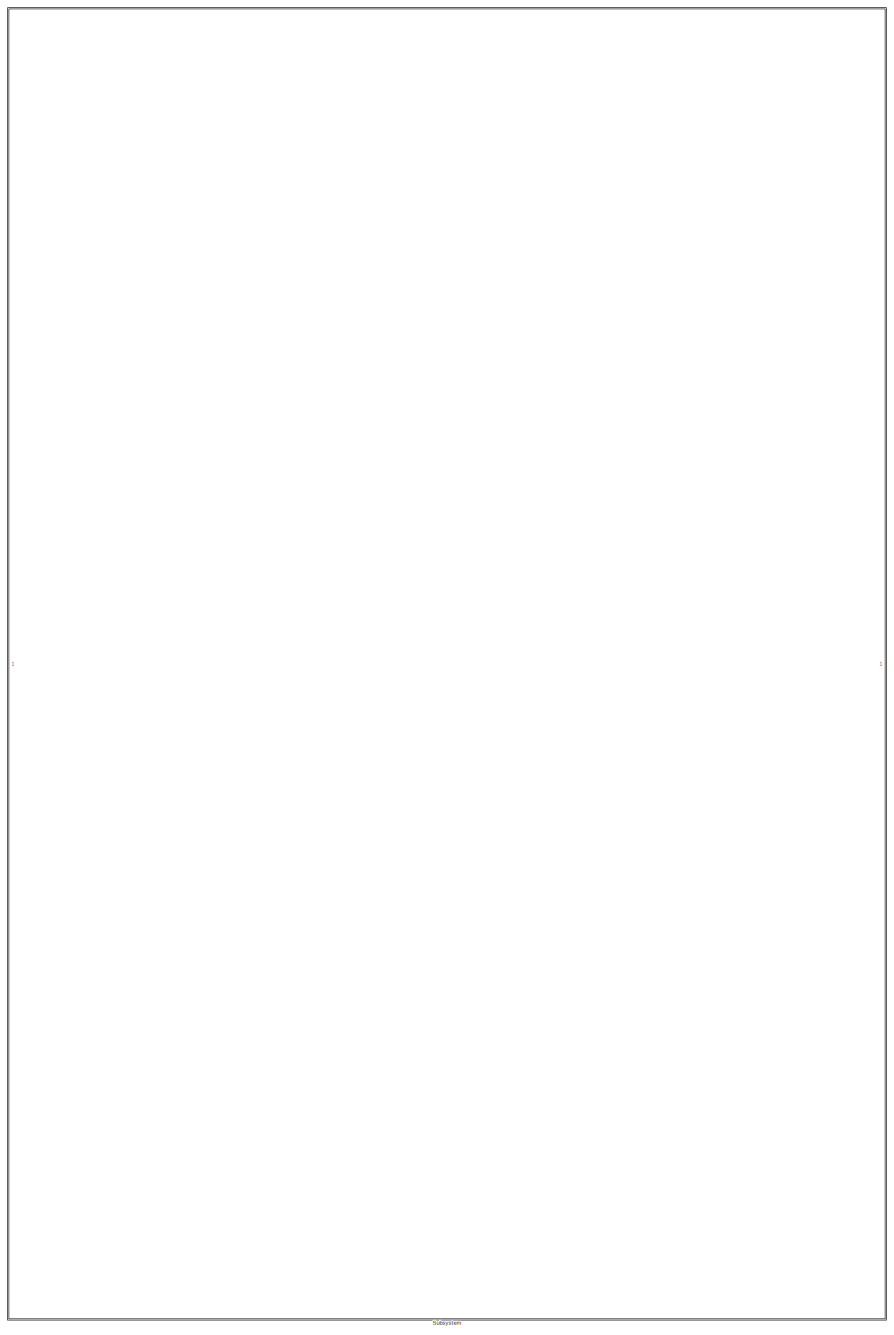
[diagram: root canvas - part 1/2, left side, full height]
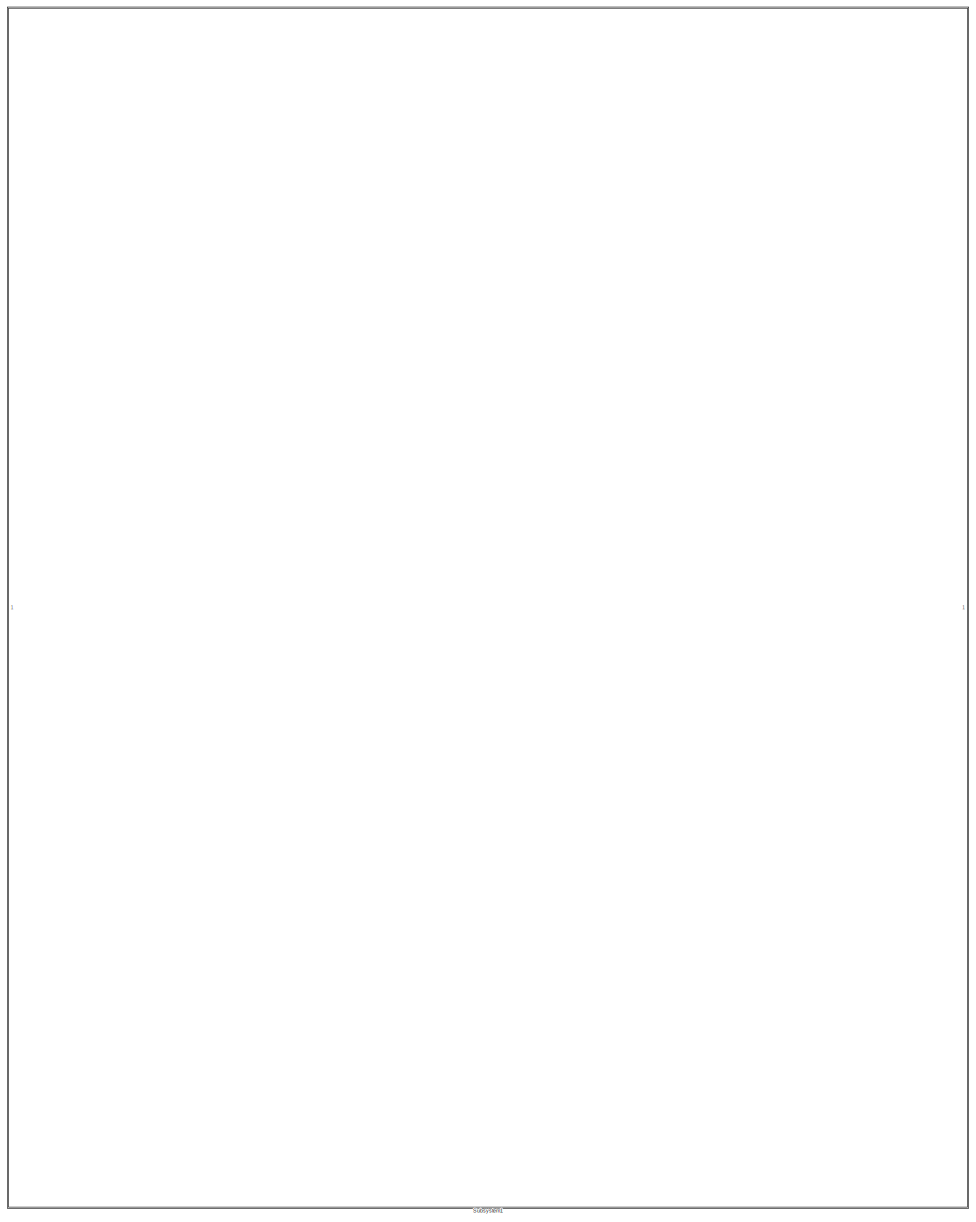
[diagram: root canvas - part 2/2, right side, full height]
MODEL slx_83ef64714634
KIND model
CONFIG AbsTol = auto
CONFIG EnableMultiTasking = off
CONFIG FixedStep = auto
CONFIG MaxStep = auto
CONFIG MinStep = auto
CONFIG RelTol = 1e-3
CONFIG SampleTimeConstraint = Unconstrained
CONFIG SolverName = VariableStepAuto
CONFIG StartTime = 0.0
CONFIG StopTime = 50
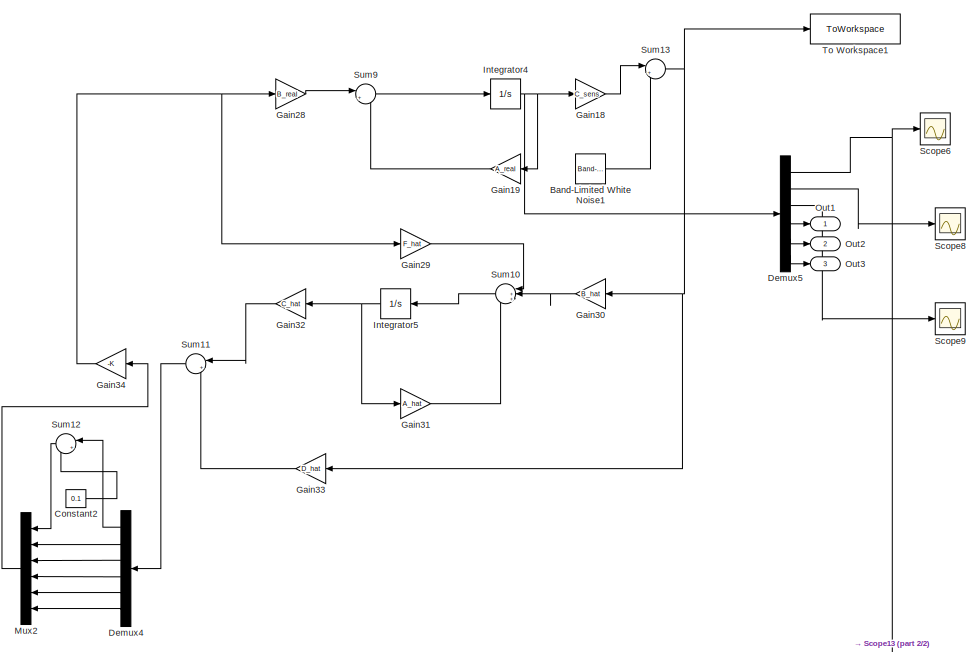
[diagram: Subsystem - part 1/2, full width, top band]
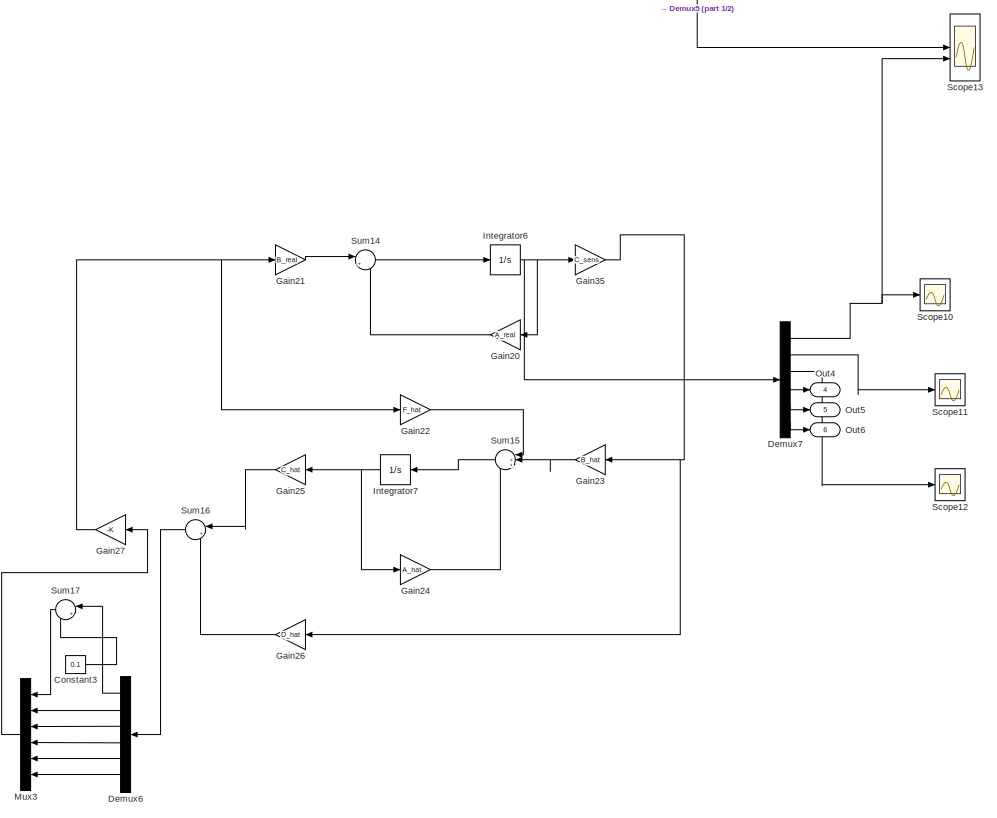
[diagram: Subsystem - part 2/2, full width, bottom band]
BLOCK [SubSystem] Subsystem
  Commented = on
BLOCK [Reference] Subsystem/Band-Limited White Noise1  REF=simulink/Sources/Band-Limited
White Noise
  SourceBlock = simulink/Sources/Band-Limited\nWhite Noise
  SourceType = Band-Limited White Noise.
BLOCK [Constant] Subsystem/Constant2
  Value = 0.1
BLOCK [Constant] Subsystem/Constant3
  Value = 0.1
BLOCK [Demux] Subsystem/Demux4
  NameLocation = top
  Outputs = 6
BLOCK [Demux] Subsystem/Demux5
  Outputs = 6
BLOCK [Demux] Subsystem/Demux6
  NameLocation = top
  Outputs = 6
BLOCK [Demux] Subsystem/Demux7
  Outputs = 6
BLOCK [Gain] Subsystem/Gain18
  Gain = C_sens
  Multiplication = Matrix(K*u)
BLOCK [Gain] Subsystem/Gain19
  Gain = A_real
  Multiplication = Matrix(K*u)
  NameLocation = top
BLOCK [Gain] Subsystem/Gain20
  Gain = A_real
  Multiplication = Matrix(K*u)
  NameLocation = top
BLOCK [Gain] Subsystem/Gain21
  Gain = B_real
  Multiplication = Matrix(K*u)
BLOCK [Gain] Subsystem/Gain22
  Gain = F_hat
  Multiplication = Matrix(K*u)
BLOCK [Gain] Subsystem/Gain23
  Gain = B_hat
  Multiplication = Matrix(K*u)
  NameLocation = top
BLOCK [Gain] Subsystem/Gain24
  Gain = A_hat
  Multiplication = Matrix(K*u)
BLOCK [Gain] Subsystem/Gain25
  Gain = C_hat
  Multiplication = Matrix(K*u)
  NameLocation = top
BLOCK [Gain] Subsystem/Gain26
  Gain = D_hat
  Multiplication = Matrix(K*u)
  NameLocation = top
BLOCK [Gain] Subsystem/Gain27
  Gain = -K
  Multiplication = Matrix(K*u)
  NameLocation = top
BLOCK [Gain] Subsystem/Gain28
  Gain = B_real
  Multiplication = Matrix(K*u)
BLOCK [Gain] Subsystem/Gain29
  Gain = F_hat
  Multiplication = Matrix(K*u)
BLOCK [Gain] Subsystem/Gain30
  Gain = B_hat
  Multiplication = Matrix(K*u)
  NameLocation = top
BLOCK [Gain] Subsystem/Gain31
  Gain = A_hat
  Multiplication = Matrix(K*u)
BLOCK [Gain] Subsystem/Gain32
  Gain = C_hat
  Multiplication = Matrix(K*u)
  NameLocation = top
BLOCK [Gain] Subsystem/Gain33
  Gain = D_hat
  Multiplication = Matrix(K*u)
  NameLocation = top
BLOCK [Gain] Subsystem/Gain34
  Gain = -K
  Multiplication = Matrix(K*u)
  NameLocation = top
BLOCK [Gain] Subsystem/Gain35
  Gain = C_sens
  Multiplication = Matrix(K*u)
BLOCK [Integrator] Subsystem/Integrator4
  InitialCondition = [0;0;1*pi/180;0;0;0]
BLOCK [Integrator] Subsystem/Integrator5
  InitialCondition = [0;0;0;0]
  NameLocation = top
BLOCK [Integrator] Subsystem/Integrator6
  InitialCondition = [0;0;1*pi/180;0;0;0]
BLOCK [Integrator] Subsystem/Integrator7
  InitialCondition = [0;0;0;0]
  NameLocation = top
BLOCK [Mux] Subsystem/Mux2
  DisplayOption = bar
  Inputs = 6
  NameLocation = top
BLOCK [Mux] Subsystem/Mux3
  DisplayOption = bar
  Inputs = 6
  NameLocation = top
BLOCK [Outport] Subsystem/Out1
BLOCK [Outport] Subsystem/Out2
  Port = 2
BLOCK [Outport] Subsystem/Out3
  Port = 3
BLOCK [Outport] Subsystem/Out4
  Port = 4
BLOCK [Outport] Subsystem/Out5
  Port = 5
BLOCK [Outport] Subsystem/Out6
  Port = 6
BLOCK [Scope] Subsystem/Scope10
  ActiveDisplayYMaximum = 2.3047007119149248
  ActiveDisplayYMinimum = -1.4571930900555263
  DataLoggingVariableName = ScopeData6
  Floating = off
  GraphicalSettings = {"Style":{"BackgroundColor":[0.12941176470588237,0.12941176470588237,0.12941176470588237],"AxesColor":[0.07058823529411765,0.07058823529411765,0.07058823529411765],"LabelsColor":[0.8509803921568627,0.8509803921568627,0.8509803921568627],"PreserveColors":false,"Visible":[true],"LineStyle":["-"],"LineWidth":[1.5],"BarWidth":[0.9],"LineColor":["auto"],"LineFaceAlpha":[1],"LineEdgeAlpha":[1],"Marker":...<+2001ch>
  MultipleDisplayCache = [{"MaxYLimMag":2.4257265013469604,"MaxYLimReal":2.3047007119149248,"MinYLimMag":0,"MinYLimReal":-1.4571930900555263,"PlotAsMagnitudePhase":false,"ShowGrid":true,"ShowLegend":false,"Title":"%<SignalLabel>","YLabel":""}]
  NumInputPorts = 1
  ScopeFrameLocation = window
  WasSavedAsWebScope = on
  WindowPosition = [267.000000,201.000000,1387.000000,752.000000,]
BLOCK [Scope] Subsystem/Scope11
  ActiveDisplayYMaximum = 75.841971632871335
  ActiveDisplayYMinimum = -38.619010005293767
  DataLoggingVariableName = ScopeData8
  Floating = off
  GraphicalSettings = {"Style":{"BackgroundColor":[0.12941176470588237,0.12941176470588237,0.12941176470588237],"AxesColor":[0.07058823529411765,0.07058823529411765,0.07058823529411765],"LabelsColor":[0.8509803921568627,0.8509803921568627,0.8509803921568627],"PreserveColors":false,"Visible":[true,true,true,true,true,true],"LineStyle":["-","-","-","-","-","-"],"LineWidth":[1.5,1.5,1.5,1.5,1.5,1.5],"BarWidth":[0.9,0.9,0....<+2610ch>
  MultipleDisplayCache = [{"MaxYLimMag":2.4257265013469604,"MaxYLimReal":75.841971632871335,"MinYLimMag":0,"MinYLimReal":-38.619010005293767,"PlotAsMagnitudePhase":false,"ShowGrid":true,"ShowLegend":false,"Title":"%<SignalLabel>","YLabel":""}]
  NumInputPorts = 1
  ScopeFrameLocation = window
  WasSavedAsWebScope = on
  WindowPosition = [302.000000,302.000000,1387.000000,752.000000,]
BLOCK [Scope] Subsystem/Scope12
  ActiveDisplayYMaximum = 0.25055600855879168
  ActiveDisplayYMinimum = 0.076583474303589763
  DataLoggingVariableName = ScopeData9
  Floating = off
  GraphicalSettings = {"AxesScalingProperties":{"AlignXAxis":"Center","AlignYAxis":"Center","AutoScaleXAxisLimits":false,"AxesScaling":"Manual","AxesScalingNumUpdates":10,"ExpandOnly":true,"ScaleAxesLimitsAtStop":false,"XAxisDataRange":100,"YAxisDataRange":80},"DisplayProperties":{"ColorOrder":["auto","auto","auto","auto","auto","auto","auto","auto","auto","auto","auto","auto","auto","auto","auto","auto","auto","auto",...<+2010ch>  <repeated x3 — deduplicated; at blocks: Scope12, Scope6, Scope9>
  MultipleDisplayCache = [{"MaxYLimMag":2.4257265013469604,"MaxYLimReal":0.25055600855879168,"MinYLimMag":0,"MinYLimReal":0.076583474303589763,"PlotAsMagnitudePhase":false,"ShowGrid":true,"ShowLegend":false,"Title":"%<SignalLabel>","YLabel":""}]
  NumInputPorts = 1
  ScopeFrameLocation = window
  WasSavedAsWebScope = on
  WindowPosition = [267.000000,302.000000,1387.000000,752.000000,]
BLOCK [Scope] Subsystem/Scope13
  ActiveDisplayYMaximum = 43.530378748753677
  ActiveDisplayYMinimum = -66.910633005790316
  DataLoggingVariableName = ScopeData10
  Floating = off
  GraphicalSettings = {"Style":{"BackgroundColor":[0.12941176470588237,0.12941176470588237,0.12941176470588237],"AxesColor":[0.07058823529411765,0.07058823529411765,0.07058823529411765],"LabelsColor":[0.8509803921568627,0.8509803921568627,0.8509803921568627],"PreserveColors":false,"Visible":[true,true],"LineStyle":["-","-"],"LineWidth":[1.5,1.5],"BarWidth":[0.9,0.9],"LineColor":["auto","auto"],"LineFaceAlpha":[1,1],"Li...<+2114ch>
  MultipleDisplayCache = [{"MaxYLimMag":2.4257265013469604,"MaxYLimReal":43.530378748753677,"MinYLimMag":0,"MinYLimReal":-66.910633005790316,"PlotAsMagnitudePhase":false,"ShowGrid":true,"ShowLegend":false,"Title":"%<SignalLabel>","YLabel":""}]
  NumInputPorts = 2
  ScopeFrameLocation = window
  WasSavedAsWebScope = on
  WindowPosition = [267.000000,275.000000,1387.000000,752.000000,]
BLOCK [Scope] Subsystem/Scope6
  ActiveDisplayYMaximum = 790.95216777342159
  ActiveDisplayYMinimum = -553.06616250271725
  DataLoggingVariableName = ScopeData11
  Floating = off
  MultipleDisplayCache = [{"MaxYLimMag":2.4257265013469604,"MaxYLimReal":790.95216777342159,"MinYLimMag":0,"MinYLimReal":-553.06616250271725,"PlotAsMagnitudePhase":false,"ShowGrid":true,"ShowLegend":false,"Title":"%<SignalLabel>","YLabel":""}]
  NumInputPorts = 1
  ScopeFrameLocation = window
  WasSavedAsWebScope = on
  WindowPosition = [267.000000,238.000000,1387.000000,752.000000,]
BLOCK [Scope] Subsystem/Scope8
  ActiveDisplayYMaximum = 75.841971632871335
  ActiveDisplayYMinimum = -38.619010005293767
  DataLoggingVariableName = ScopeData12
  Floating = off
  GraphicalSettings = {"Style":{"BackgroundColor":[0.12941176470588237,0.12941176470588237,0.12941176470588237],"AxesColor":[0.07058823529411765,0.07058823529411765,0.07058823529411765],"LabelsColor":[0.8509803921568627,0.8509803921568627,0.8509803921568627],"PreserveColors":false,"Visible":[true,true,true,true,true,true],"LineStyle":["-","-","-","-","-","-"],"LineWidth":[1.5,1.5,1.5,1.5,1.5,1.5],"BarWidth":[0.9,0.9,0....<+2610ch>
  MultipleDisplayCache = [{"MaxYLimMag":2.4257265013469604,"MaxYLimReal":75.841971632871335,"MinYLimMag":0,"MinYLimReal":-38.619010005293767,"PlotAsMagnitudePhase":false,"ShowGrid":true,"ShowLegend":false,"Title":"%<SignalLabel>","YLabel":""}]
  NumInputPorts = 1
  ScopeFrameLocation = window
  WasSavedAsWebScope = on
  WindowPosition = [302.000000,302.000000,1387.000000,752.000000,]
BLOCK [Scope] Subsystem/Scope9
  ActiveDisplayYMaximum = 0.25055600855879168
  ActiveDisplayYMinimum = 0.076583474303589763
  DataLoggingVariableName = ScopeData13
  Floating = off
  MultipleDisplayCache = [{"MaxYLimMag":2.4257265013469604,"MaxYLimReal":0.25055600855879168,"MinYLimMag":0,"MinYLimReal":0.076583474303589763,"PlotAsMagnitudePhase":false,"ShowGrid":true,"ShowLegend":false,"Title":"%<SignalLabel>","YLabel":""}]
  NumInputPorts = 1
  ScopeFrameLocation = window
  WasSavedAsWebScope = on
  WindowPosition = [267.000000,302.000000,1387.000000,752.000000,]
BLOCK [Sum] Subsystem/Sum10
  Inputs = |+++
  NameLocation = top
BLOCK [Sum] Subsystem/Sum11
  Inputs = |++
  NameLocation = top
BLOCK [Sum] Subsystem/Sum12
  Inputs = |+-
  NameLocation = top
BLOCK [Sum] Subsystem/Sum13
  Inputs = |++
BLOCK [Sum] Subsystem/Sum14
  Inputs = |++
BLOCK [Sum] Subsystem/Sum15
  Inputs = |+++
  NameLocation = top
BLOCK [Sum] Subsystem/Sum16
  Inputs = |++
  NameLocation = top
BLOCK [Sum] Subsystem/Sum17
  Inputs = |+-
  NameLocation = top
BLOCK [Sum] Subsystem/Sum9
  Inputs = |++
BLOCK [ToWorkspace] Subsystem/To Workspace1
  FixptAsFi = on
  MaxDataPoints = inf
  SampleTime = -1
  VariableName = noisy_data1
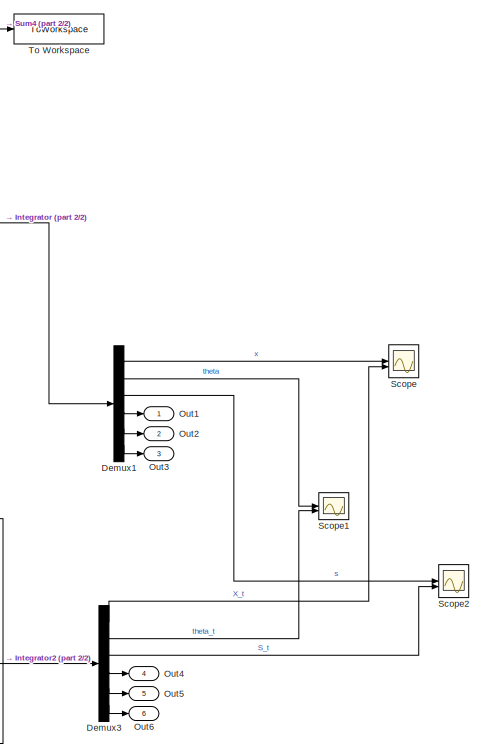
[diagram: Subsystem1 - part 1/2, middle right region]
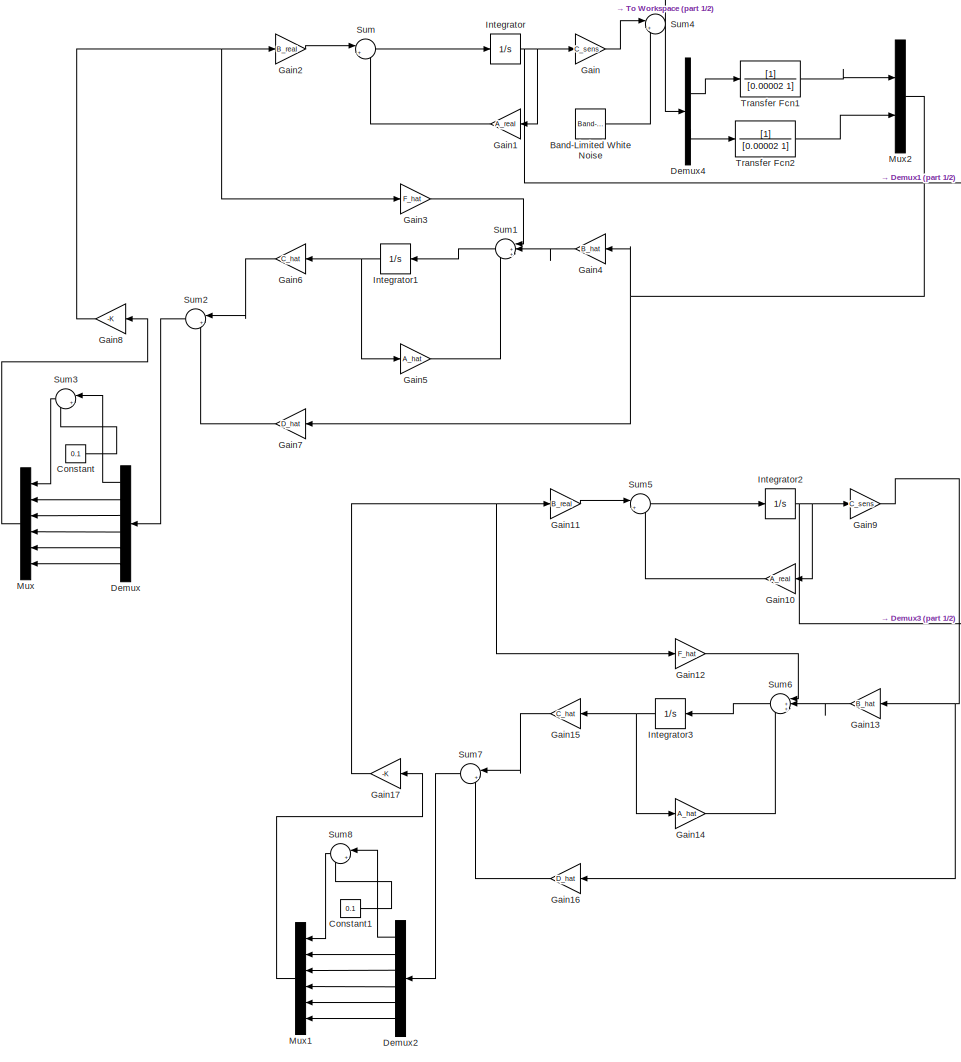
[diagram: Subsystem1 - part 2/2, center side, full height]
BLOCK [SubSystem] Subsystem1
BLOCK [Reference] Subsystem1/Band-Limited White Noise  REF=simulink/Sources/Band-Limited
White Noise
  SourceBlock = simulink/Sources/Band-Limited\nWhite Noise
  SourceType = Band-Limited White Noise.
BLOCK [Constant] Subsystem1/Constant
  Value = 0.1
BLOCK [Constant] Subsystem1/Constant1
  Value = 0.1
BLOCK [Demux] Subsystem1/Demux
  NameLocation = top
  Outputs = 6
BLOCK [Demux] Subsystem1/Demux1
  Outputs = 6
BLOCK [Demux] Subsystem1/Demux2
  NameLocation = top
  Outputs = 6
BLOCK [Demux] Subsystem1/Demux3
  Outputs = 6
BLOCK [Demux] Subsystem1/Demux4
  Outputs = 2
BLOCK [Gain] Subsystem1/Gain
  Gain = C_sens
  Multiplication = Matrix(K*u)
BLOCK [Gain] Subsystem1/Gain1
  Gain = A_real
  Multiplication = Matrix(K*u)
  NameLocation = top
BLOCK [Gain] Subsystem1/Gain10
  Gain = A_real
  Multiplication = Matrix(K*u)
  NameLocation = top
BLOCK [Gain] Subsystem1/Gain11
  Gain = B_real
  Multiplication = Matrix(K*u)
BLOCK [Gain] Subsystem1/Gain12
  Gain = F_hat
  Multiplication = Matrix(K*u)
BLOCK [Gain] Subsystem1/Gain13
  Gain = B_hat
  Multiplication = Matrix(K*u)
  NameLocation = top
BLOCK [Gain] Subsystem1/Gain14
  Gain = A_hat
  Multiplication = Matrix(K*u)
BLOCK [Gain] Subsystem1/Gain15
  Gain = C_hat
  Multiplication = Matrix(K*u)
  NameLocation = top
BLOCK [Gain] Subsystem1/Gain16
  Gain = D_hat
  Multiplication = Matrix(K*u)
  NameLocation = top
BLOCK [Gain] Subsystem1/Gain17
  Gain = -K
  Multiplication = Matrix(K*u)
  NameLocation = top
BLOCK [Gain] Subsystem1/Gain2
  Gain = B_real
  Multiplication = Matrix(K*u)
BLOCK [Gain] Subsystem1/Gain3
  Gain = F_hat
  Multiplication = Matrix(K*u)
BLOCK [Gain] Subsystem1/Gain4
  Gain = B_hat
  Multiplication = Matrix(K*u)
  NameLocation = top
BLOCK [Gain] Subsystem1/Gain5
  Gain = A_hat
  Multiplication = Matrix(K*u)
BLOCK [Gain] Subsystem1/Gain6
  Gain = C_hat
  Multiplication = Matrix(K*u)
  NameLocation = top
BLOCK [Gain] Subsystem1/Gain7
  Gain = D_hat
  Multiplication = Matrix(K*u)
  NameLocation = top
BLOCK [Gain] Subsystem1/Gain8
  Gain = -K
  Multiplication = Matrix(K*u)
  NameLocation = top
BLOCK [Gain] Subsystem1/Gain9
  Gain = C_sens
  Multiplication = Matrix(K*u)
BLOCK [Integrator] Subsystem1/Integrator
  InitialCondition = [0;0;4*pi/180;0;0;0]
BLOCK [Integrator] Subsystem1/Integrator1
  InitialCondition = [0;0;0;0]
  NameLocation = top
BLOCK [Integrator] Subsystem1/Integrator2
  InitialCondition = [0;0;4*pi/180;0;0;0]
BLOCK [Integrator] Subsystem1/Integrator3
  InitialCondition = [0;0;0;0]
  NameLocation = top
BLOCK [Mux] Subsystem1/Mux
  DisplayOption = bar
  Inputs = 6
  NameLocation = top
BLOCK [Mux] Subsystem1/Mux1
  DisplayOption = bar
  Inputs = 6
  NameLocation = top
BLOCK [Mux] Subsystem1/Mux2
  DisplayOption = bar
  Inputs = 2
BLOCK [Outport] Subsystem1/Out1
BLOCK [Outport] Subsystem1/Out2
  Port = 2
BLOCK [Outport] Subsystem1/Out3
  Port = 3
BLOCK [Outport] Subsystem1/Out4
  Port = 4
BLOCK [Outport] Subsystem1/Out5
  Port = 5
BLOCK [Outport] Subsystem1/Out6
  Port = 6
BLOCK [Scope] Subsystem1/Scope
  Floating = off
  GraphicalSettings = {"GraphicalSettings":{"LegacySettings":true,"Style":{"Style":{"PlotType":"Auto"}}}}
  NumInputPorts = 2
  WasSavedAsWebScope = on
BLOCK [Scope] Subsystem1/Scope1
  DataLoggingVariableName = ScopeData1
  Floating = off
  GraphicalSettings = {"GraphicalSettings":{"LegacySettings":true,"Style":{"Style":{"PlotType":"Auto"}}}}
  NumInputPorts = 2
  WasSavedAsWebScope = on
BLOCK [Scope] Subsystem1/Scope2
  ActiveDisplayYMaximum = 1.9646271868821386
  ActiveDisplayYMinimum = -2.5105740742429736
  DataLoggingVariableName = ScopeData2
  Floating = off
  GraphicalSettings = {"Style":{"BackgroundColor":[0.12941176470588237,0.12941176470588237,0.12941176470588237],"AxesColor":[0.07058823529411765,0.07058823529411765,0.07058823529411765],"LabelsColor":[0.8509803921568627,0.8509803921568627,0.8509803921568627],"PreserveColors":false,"Visible":[true,true],"LineStyle":["-","-"],"LineWidth":[1.5,1.5],"BarWidth":[0.9,0.9],"LineColor":["auto","auto"],"LineFaceAlpha":[1,1],"Li...<+2094ch>
  MultipleDisplayCache = [{"MaxYLimMag":0.51399971131980771,"MaxYLimReal":1.9646271868821386,"MinYLimMag":0,"MinYLimReal":-2.5105740742429736,"PlotAsMagnitudePhase":false,"ShowGrid":true,"ShowLegend":true,"Title":"%<SignalLabel>","YLabel":""}]
  NumInputPorts = 2
  ScopeFrameLocation = window
  ShowLegend = on
  WasSavedAsWebScope = on
  WindowPosition = [81.000000,30.000000,1850.000000,1016.000000,]
BLOCK [Sum] Subsystem1/Sum
  Inputs = |++
BLOCK [Sum] Subsystem1/Sum1
  Inputs = |+++
  NameLocation = top
BLOCK [Sum] Subsystem1/Sum2
  Inputs = |++
  NameLocation = top
BLOCK [Sum] Subsystem1/Sum3
  Inputs = |+-
  NameLocation = top
BLOCK [Sum] Subsystem1/Sum4
  Inputs = |++
BLOCK [Sum] Subsystem1/Sum5
  Inputs = |++
BLOCK [Sum] Subsystem1/Sum6
  Inputs = |+++
  NameLocation = top
BLOCK [Sum] Subsystem1/Sum7
  Inputs = |++
  NameLocation = top
BLOCK [Sum] Subsystem1/Sum8
  Inputs = |+-
  NameLocation = top
BLOCK [ToWorkspace] Subsystem1/To Workspace
  FixptAsFi = on
  MaxDataPoints = inf
  SampleTime = -1
  VariableName = noisy_data
BLOCK [TransferFcn] Subsystem1/Transfer Fcn1
  Denominator = [0.00002 1]
BLOCK [TransferFcn] Subsystem1/Transfer Fcn2
  Denominator = [0.00002 1]
LINE Subsystem/Band-Limited White Noise1:1 -> Subsystem/Sum13:2
LINE Subsystem/Constant2:1 -> Subsystem/Sum12:2
LINE Subsystem/Constant3:1 -> Subsystem/Sum17:2
LINE Subsystem/Demux4:1 -> Subsystem/Sum12:1
LINE Subsystem/Demux4:2 -> Subsystem/Mux2:2
LINE Subsystem/Demux4:3 -> Subsystem/Mux2:3
LINE Subsystem/Demux4:4 -> Subsystem/Mux2:4
LINE Subsystem/Demux4:5 -> Subsystem/Mux2:5
LINE Subsystem/Demux4:6 -> Subsystem/Mux2:6
NET Subsystem/Demux5:1 -> Subsystem/Scope13:1, Subsystem/Scope6:1
LINE Subsystem/Demux5:2 -> Subsystem/Scope8:1
LINE Subsystem/Demux5:3 -> Subsystem/Scope9:1
LINE Subsystem/Demux5:4 -> Subsystem/Out1:1
LINE Subsystem/Demux5:5 -> Subsystem/Out2:1
LINE Subsystem/Demux5:6 -> Subsystem/Out3:1
LINE Subsystem/Demux6:1 -> Subsystem/Sum17:1
LINE Subsystem/Demux6:2 -> Subsystem/Mux3:2
LINE Subsystem/Demux6:3 -> Subsystem/Mux3:3
LINE Subsystem/Demux6:4 -> Subsystem/Mux3:4
LINE Subsystem/Demux6:5 -> Subsystem/Mux3:5
LINE Subsystem/Demux6:6 -> Subsystem/Mux3:6
NET Subsystem/Demux7:1 -> Subsystem/Scope10:1, Subsystem/Scope13:2
LINE Subsystem/Demux7:2 -> Subsystem/Scope11:1
LINE Subsystem/Demux7:3 -> Subsystem/Scope12:1
LINE Subsystem/Demux7:4 -> Subsystem/Out4:1
LINE Subsystem/Demux7:5 -> Subsystem/Out5:1
LINE Subsystem/Demux7:6 -> Subsystem/Out6:1
LINE Subsystem/Gain18:1 -> Subsystem/Sum13:1
LINE Subsystem/Gain19:1 -> Subsystem/Sum9:2
LINE Subsystem/Gain20:1 -> Subsystem/Sum14:2
LINE Subsystem/Gain21:1 -> Subsystem/Sum14:1
LINE Subsystem/Gain22:1 -> Subsystem/Sum15:1
LINE Subsystem/Gain23:1 -> Subsystem/Sum15:2
LINE Subsystem/Gain24:1 -> Subsystem/Sum15:3
LINE Subsystem/Gain25:1 -> Subsystem/Sum16:1
LINE Subsystem/Gain26:1 -> Subsystem/Sum16:2
NET Subsystem/Gain27:1 -> Subsystem/Gain21:1, Subsystem/Gain22:1
LINE Subsystem/Gain28:1 -> Subsystem/Sum9:1
LINE Subsystem/Gain29:1 -> Subsystem/Sum10:1
LINE Subsystem/Gain30:1 -> Subsystem/Sum10:2
LINE Subsystem/Gain31:1 -> Subsystem/Sum10:3
LINE Subsystem/Gain32:1 -> Subsystem/Sum11:1
LINE Subsystem/Gain33:1 -> Subsystem/Sum11:2
NET Subsystem/Gain34:1 -> Subsystem/Gain28:1, Subsystem/Gain29:1
NET Subsystem/Gain35:1 -> Subsystem/Gain23:1, Subsystem/Gain26:1
NET Subsystem/Integrator4:1 -> Subsystem/Demux5:1, Subsystem/Gain18:1, Subsystem/Gain19:1
NET Subsystem/Integrator5:1 -> Subsystem/Gain31:1, Subsystem/Gain32:1
NET Subsystem/Integrator6:1 -> Subsystem/Demux7:1, Subsystem/Gain20:1, Subsystem/Gain35:1
NET Subsystem/Integrator7:1 -> Subsystem/Gain24:1, Subsystem/Gain25:1
LINE Subsystem/Mux2:1 -> Subsystem/Gain34:1
LINE Subsystem/Mux3:1 -> Subsystem/Gain27:1
LINE Subsystem/Sum10:1 -> Subsystem/Integrator5:1
LINE Subsystem/Sum11:1 -> Subsystem/Demux4:1
LINE Subsystem/Sum12:1 -> Subsystem/Mux2:1
NET Subsystem/Sum13:1 -> Subsystem/Gain30:1, Subsystem/Gain33:1, Subsystem/To Workspace1:1
LINE Subsystem/Sum14:1 -> Subsystem/Integrator6:1
LINE Subsystem/Sum15:1 -> Subsystem/Integrator7:1
LINE Subsystem/Sum16:1 -> Subsystem/Demux6:1
LINE Subsystem/Sum17:1 -> Subsystem/Mux3:1
LINE Subsystem/Sum9:1 -> Subsystem/Integrator4:1
LINE Subsystem1/Band-Limited White Noise:1 -> Subsystem1/Sum4:2
LINE Subsystem1/Constant1:1 -> Subsystem1/Sum8:2
LINE Subsystem1/Constant:1 -> Subsystem1/Sum3:2
LINE Subsystem1/Demux1:1 -> Subsystem1/Scope:1
LINE Subsystem1/Demux1:2 -> Subsystem1/Scope1:1
LINE Subsystem1/Demux1:3 -> Subsystem1/Scope2:1
LINE Subsystem1/Demux1:4 -> Subsystem1/Out1:1
LINE Subsystem1/Demux1:5 -> Subsystem1/Out2:1
LINE Subsystem1/Demux1:6 -> Subsystem1/Out3:1
LINE Subsystem1/Demux2:1 -> Subsystem1/Sum8:1
LINE Subsystem1/Demux2:2 -> Subsystem1/Mux1:2
LINE Subsystem1/Demux2:3 -> Subsystem1/Mux1:3
LINE Subsystem1/Demux2:4 -> Subsystem1/Mux1:4
LINE Subsystem1/Demux2:5 -> Subsystem1/Mux1:5
LINE Subsystem1/Demux2:6 -> Subsystem1/Mux1:6
LINE Subsystem1/Demux3:1 -> Subsystem1/Scope:2
LINE Subsystem1/Demux3:2 -> Subsystem1/Scope1:2
LINE Subsystem1/Demux3:3 -> Subsystem1/Scope2:2
LINE Subsystem1/Demux3:4 -> Subsystem1/Out4:1
LINE Subsystem1/Demux3:5 -> Subsystem1/Out5:1
LINE Subsystem1/Demux3:6 -> Subsystem1/Out6:1
LINE Subsystem1/Demux4:1 -> Subsystem1/Transfer Fcn1:1
LINE Subsystem1/Demux4:2 -> Subsystem1/Transfer Fcn2:1
LINE Subsystem1/Demux:1 -> Subsystem1/Sum3:1
LINE Subsystem1/Demux:2 -> Subsystem1/Mux:2
LINE Subsystem1/Demux:3 -> Subsystem1/Mux:3
LINE Subsystem1/Demux:4 -> Subsystem1/Mux:4
LINE Subsystem1/Demux:5 -> Subsystem1/Mux:5
LINE Subsystem1/Demux:6 -> Subsystem1/Mux:6
LINE Subsystem1/Gain10:1 -> Subsystem1/Sum5:2
LINE Subsystem1/Gain11:1 -> Subsystem1/Sum5:1
LINE Subsystem1/Gain12:1 -> Subsystem1/Sum6:1
LINE Subsystem1/Gain13:1 -> Subsystem1/Sum6:2
LINE Subsystem1/Gain14:1 -> Subsystem1/Sum6:3
LINE Subsystem1/Gain15:1 -> Subsystem1/Sum7:1
LINE Subsystem1/Gain16:1 -> Subsystem1/Sum7:2
NET Subsystem1/Gain17:1 -> Subsystem1/Gain11:1, Subsystem1/Gain12:1
LINE Subsystem1/Gain1:1 -> Subsystem1/Sum:2
LINE Subsystem1/Gain2:1 -> Subsystem1/Sum:1
LINE Subsystem1/Gain3:1 -> Subsystem1/Sum1:1
LINE Subsystem1/Gain4:1 -> Subsystem1/Sum1:2
LINE Subsystem1/Gain5:1 -> Subsystem1/Sum1:3
LINE Subsystem1/Gain6:1 -> Subsystem1/Sum2:1
LINE Subsystem1/Gain7:1 -> Subsystem1/Sum2:2
NET Subsystem1/Gain8:1 -> Subsystem1/Gain2:1, Subsystem1/Gain3:1
NET Subsystem1/Gain9:1 -> Subsystem1/Gain13:1, Subsystem1/Gain16:1
LINE Subsystem1/Gain:1 -> Subsystem1/Sum4:1
NET Subsystem1/Integrator1:1 -> Subsystem1/Gain5:1, Subsystem1/Gain6:1
NET Subsystem1/Integrator2:1 -> Subsystem1/Demux3:1, Subsystem1/Gain10:1, Subsystem1/Gain9:1
NET Subsystem1/Integrator3:1 -> Subsystem1/Gain14:1, Subsystem1/Gain15:1
NET Subsystem1/Integrator:1 -> Subsystem1/Demux1:1, Subsystem1/Gain1:1, Subsystem1/Gain:1
LINE Subsystem1/Mux1:1 -> Subsystem1/Gain17:1
NET Subsystem1/Mux2:1 -> Subsystem1/Gain4:1, Subsystem1/Gain7:1
LINE Subsystem1/Mux:1 -> Subsystem1/Gain8:1
LINE Subsystem1/Sum1:1 -> Subsystem1/Integrator1:1
LINE Subsystem1/Sum2:1 -> Subsystem1/Demux:1
LINE Subsystem1/Sum3:1 -> Subsystem1/Mux:1
NET Subsystem1/Sum4:1 -> Subsystem1/Demux4:1, Subsystem1/To Workspace:1
LINE Subsystem1/Sum5:1 -> Subsystem1/Integrator2:1
LINE Subsystem1/Sum6:1 -> Subsystem1/Integrator3:1
LINE Subsystem1/Sum7:1 -> Subsystem1/Demux2:1
LINE Subsystem1/Sum8:1 -> Subsystem1/Mux1:1
LINE Subsystem1/Sum:1 -> Subsystem1/Integrator:1
LINE Subsystem1/Transfer Fcn1:1 -> Subsystem1/Mux2:1
LINE Subsystem1/Transfer Fcn2:1 -> Subsystem1/Mux2:2
note: NET lines group one-source signal fan-out (src -> all destinations, sorted); 1:1 wires keep LINE
